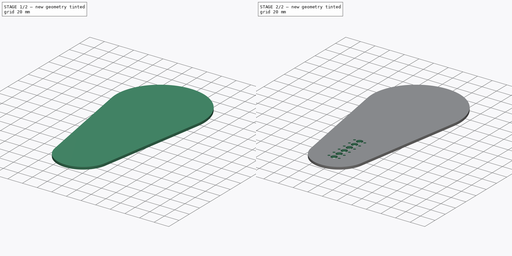
[diagram: build sequence overview — one tinted view per stage of 2, left to right]
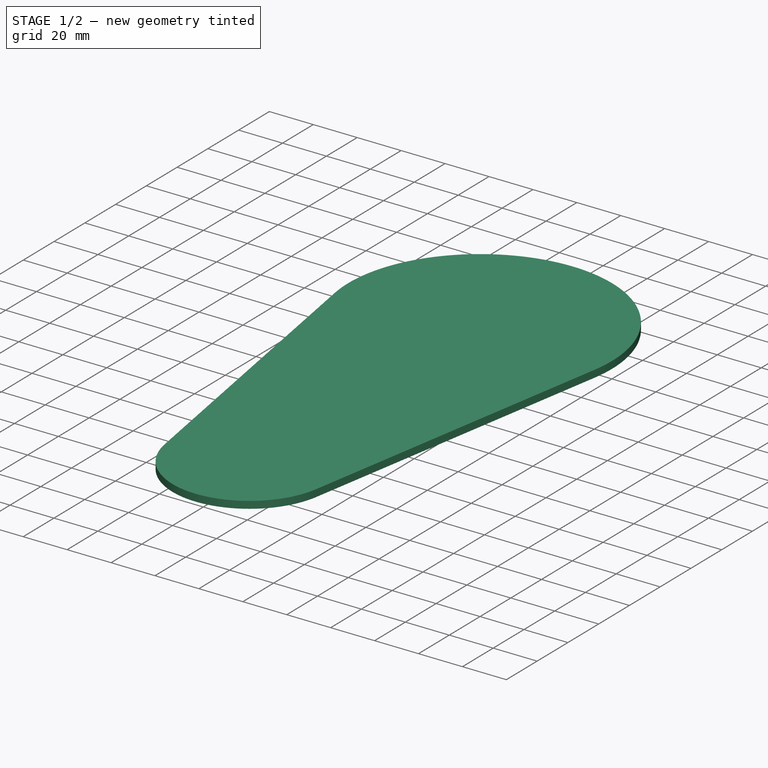
[diagram: stage 1 of 2 — iso view after this stage's code; geometry added in this stage tinted green]
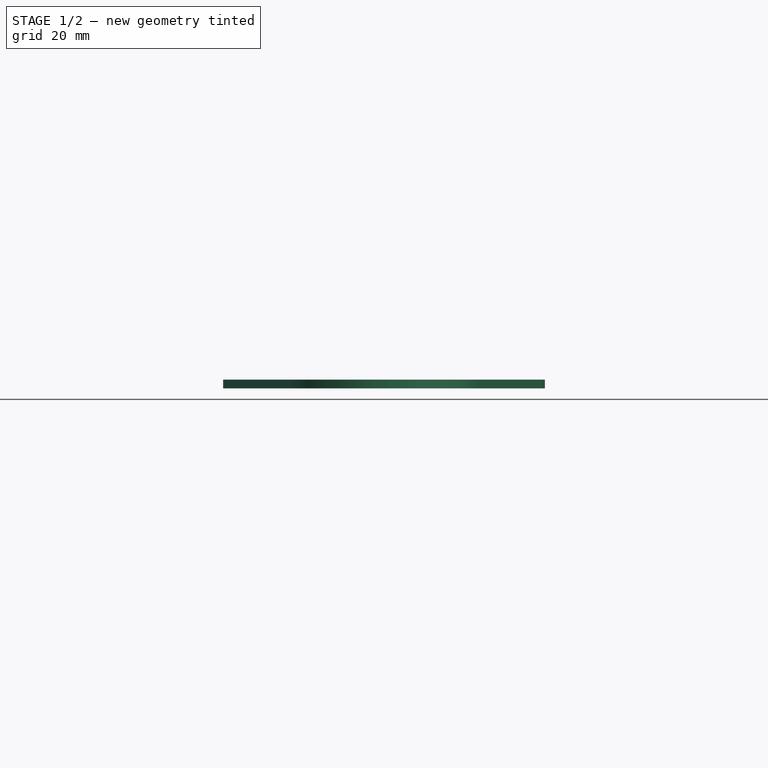
[diagram: stage 1 of 2 — front view after this stage's code; geometry added in this stage tinted green]
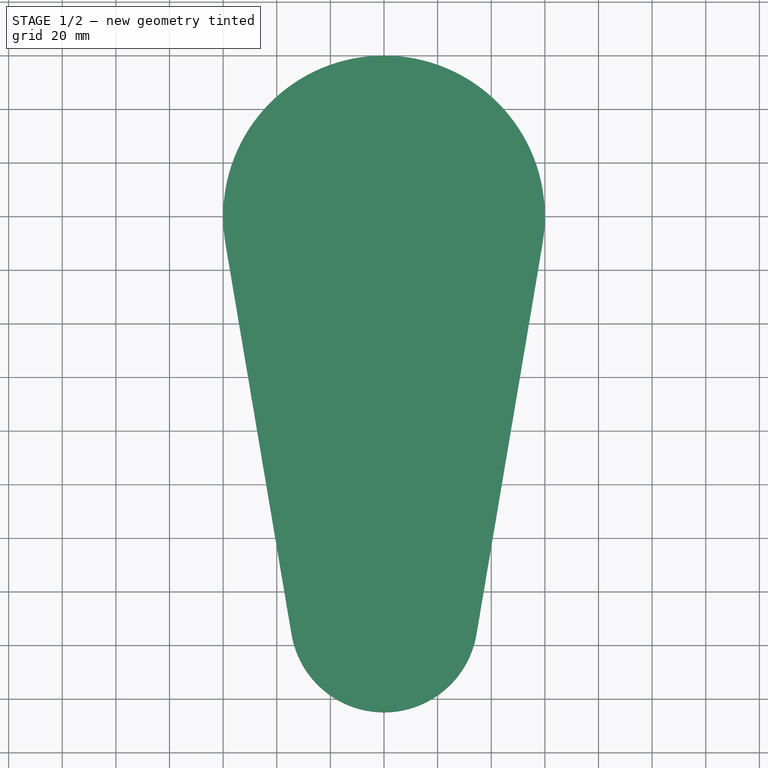
[diagram: stage 1 of 2 — top view after this stage's code; geometry added in this stage tinted green]
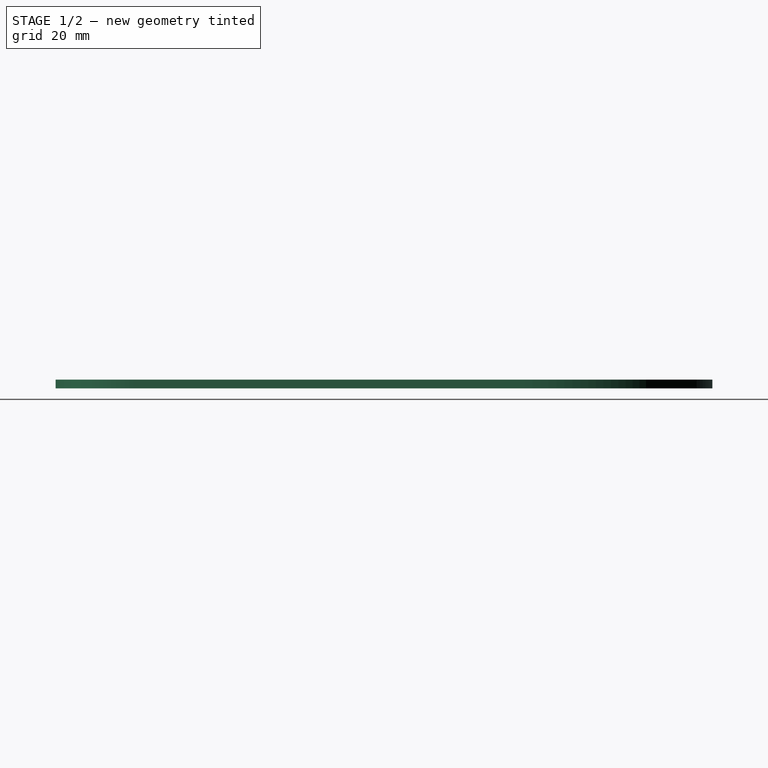
[diagram: stage 1 of 2 — right view after this stage's code; geometry added in this stage tinted green]
FCSTD DOCUMENT  (FreeCAD 0.17R13541 (Git))
Label: PaleShutter24Cm
License: All rights reserved
LicenseURL: http://en.wikipedia.org/wiki/All_rights_reserved
objects: Sketcher::SketchObject×2, PartDesign::Pad×1, PartDesign::Pocket×1, PartDesign::Body×1
note: 7 computed .brp shape members not serialized (recipe doc carries the construction recipe); baked Part::Feature solids carry a one-line shape summary decoded from their .brp

FEATURE [Sketcher::SketchObject] Sketch
  MapMode = 5
  Support = -> [XY_Plane]
  sketch-geometry (4):
    g0: ArcOfCircle CenterX=0 CenterY=0 CenterZ=0 NormalX=0 NormalY=0 NormalZ=1 AngleXU=0 Radius=60 StartAngle=6.11574 EndAngle=9.59223
    g1: ArcOfCircle CenterX=0 CenterY=-150 CenterZ=0 NormalX=0 NormalY=0 NormalZ=1 AngleXU=0 Radius=35 StartAngle=3.30904 EndAngle=6.11574
    g2: LineSegment StartX=-59.1608 StartY=-10 StartZ=0 EndX=-34.5105 EndY=-155.833 EndZ=0
    g3: LineSegment StartX=59.1608 StartY=-10 StartZ=0 EndX=34.5105 EndY=-155.833 EndZ=0
  constraints (9):
    c: Radius(g0) = 60
    c: Coincident(g-1,g0)
    c: Radius(g1) = 35
    c: DistanceX(g1,g-1) = 0
    c: DistanceY(g1,g-1) = 150
    c: Coincident(g3,g1)
    c: Coincident(g2,g1)
    c: Coincident(g3,g0)
    c: Coincident(g2,g0)
FEATURE [PartDesign::Pad] Pad
  Length = 3.25
  Length2 = 100
  Profile = -> Sketch
  Type = 0
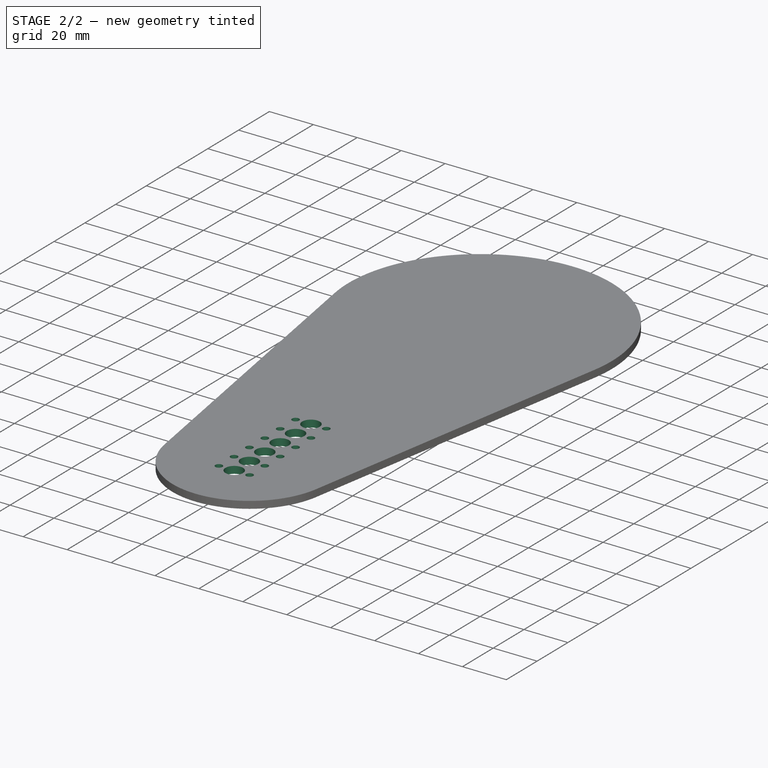
[diagram: stage 2 of 2 — iso view after this stage's code; geometry added in this stage tinted green]
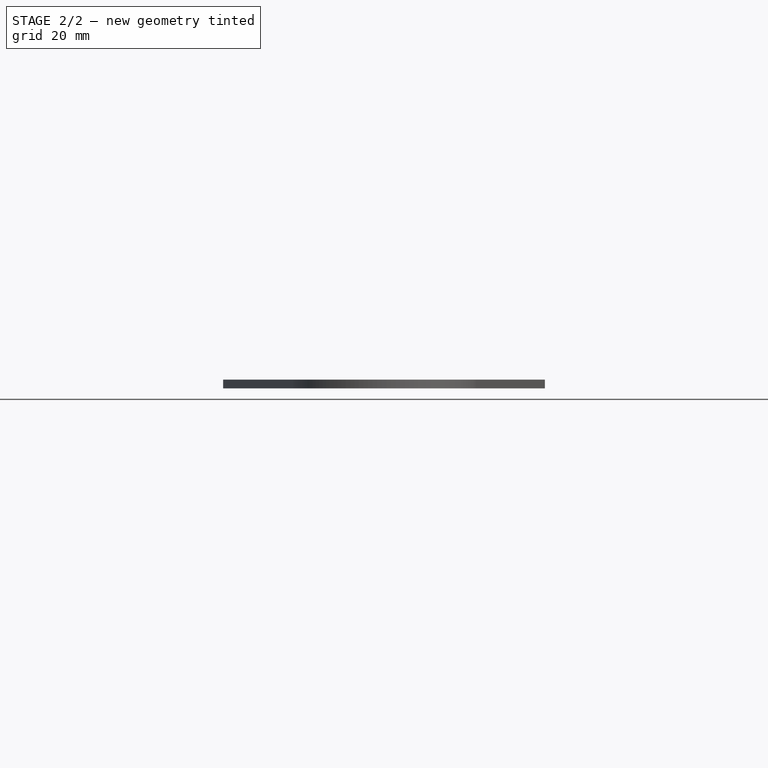
[diagram: stage 2 of 2 — front view after this stage's code; geometry added in this stage tinted green]
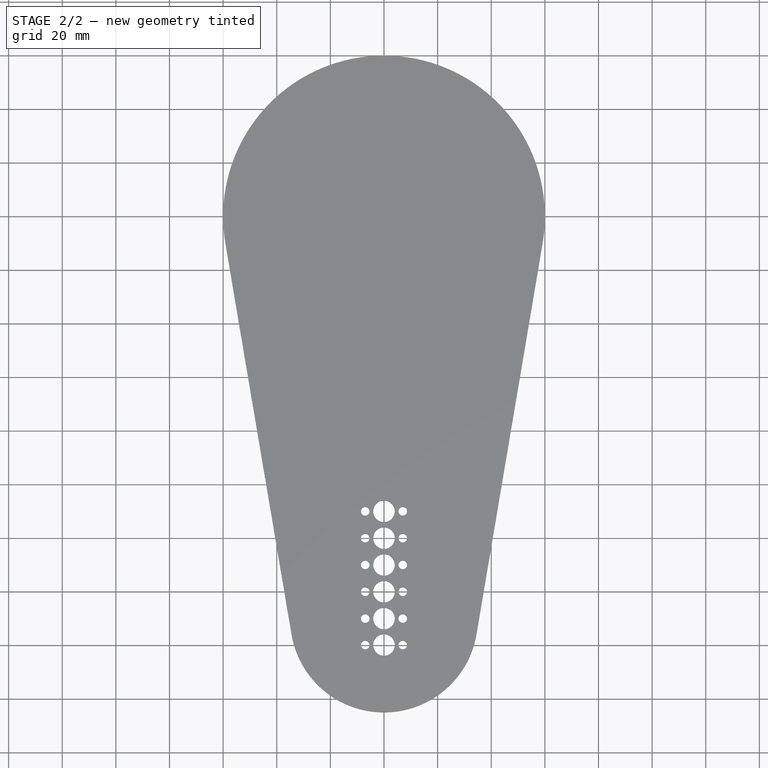
[diagram: stage 2 of 2 — top view after this stage's code; geometry added in this stage tinted green]
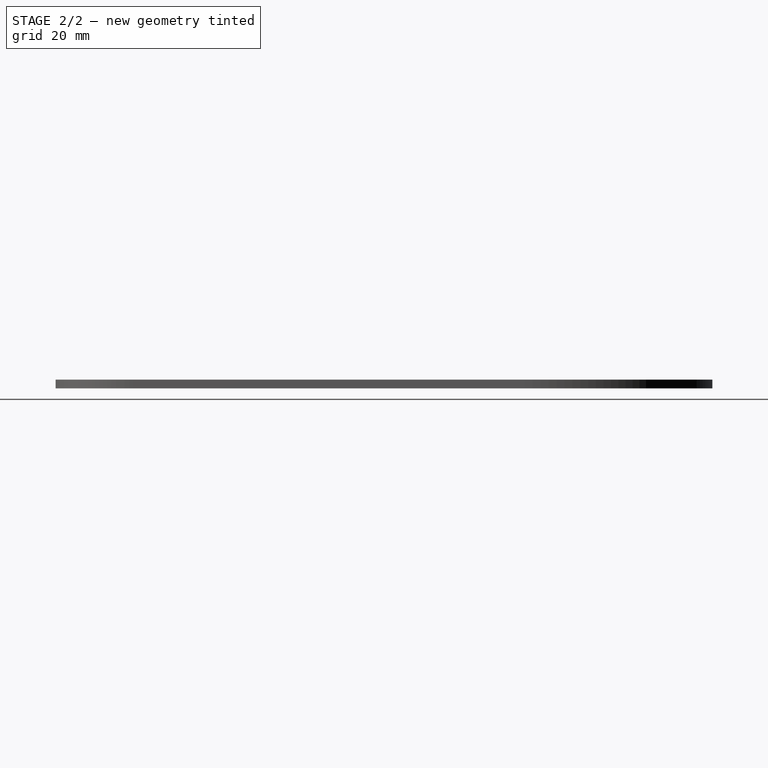
[diagram: stage 2 of 2 — right view after this stage's code; geometry added in this stage tinted green]
FEATURE [Sketcher::SketchObject] Sketch001
  ExternalGeometry = -> [Pad]
  MapMode = 5
  Placement = pos=(0,0,3.25) rot=(0,0,1;0rad)
  Support = -> [Pad]
  sketch-geometry (18):
    g0: Circle CenterX=0 CenterY=-150 CenterZ=0 NormalX=0 NormalY=0 NormalZ=1 AngleXU=0 Radius=4
    g1: Circle CenterX=-7 CenterY=-150 CenterZ=0 NormalX=0 NormalY=0 NormalZ=1 AngleXU=0 Radius=1.6
    g2: Circle CenterX=7 CenterY=-150 CenterZ=0 NormalX=0 NormalY=0 NormalZ=1 AngleXU=0 Radius=1.6
    g3: Circle CenterX=0 CenterY=-130 CenterZ=0 NormalX=0 NormalY=0 NormalZ=1 AngleXU=0 Radius=4
    g4: Circle CenterX=7 CenterY=-130 CenterZ=0 NormalX=0 NormalY=0 NormalZ=1 AngleXU=0 Radius=1.6
    g5: Circle CenterX=-7 CenterY=-130 CenterZ=0 NormalX=0 NormalY=0 NormalZ=1 AngleXU=0 Radius=1.6
    g6: Circle CenterX=0 CenterY=-140 CenterZ=0 NormalX=0 NormalY=0 NormalZ=1 AngleXU=0 Radius=4
    g7: Circle CenterX=7 CenterY=-140 CenterZ=0 NormalX=0 NormalY=0 NormalZ=1 AngleXU=0 Radius=1.6
    g8: Circle CenterX=-7 CenterY=-140 CenterZ=0 NormalX=0 NormalY=0 NormalZ=1 AngleXU=0 Radius=1.6
    g9: Circle CenterX=0 CenterY=-159.875 CenterZ=0 NormalX=0 NormalY=0 NormalZ=1 AngleXU=0 Radius=4
    g10: Circle CenterX=7 CenterY=-159.875 CenterZ=0 NormalX=0 NormalY=0 NormalZ=1 AngleXU=0 Radius=1.6
    g11: Circle CenterX=-7 CenterY=-159.875 CenterZ=0 NormalX=0 NormalY=0 NormalZ=1 AngleXU=0 Radius=1.6
    g12: Circle CenterX=0 CenterY=-120 CenterZ=0 NormalX=0 NormalY=0 NormalZ=1 AngleXU=0 Radius=4
    g13: Circle CenterX=7 CenterY=-120 CenterZ=0 NormalX=0 NormalY=0 NormalZ=1 AngleXU=0 Radius=1.6
    g14: Circle CenterX=-7 CenterY=-120 CenterZ=0 NormalX=0 NormalY=0 NormalZ=1 AngleXU=0 Radius=1.6
    g15: Circle CenterX=0 CenterY=-110 CenterZ=0 NormalX=0 NormalY=0 NormalZ=1 AngleXU=0 Radius=4
    g16: Circle CenterX=7 CenterY=-110 CenterZ=0 NormalX=0 NormalY=0 NormalZ=1 AngleXU=0 Radius=1.6
    g17: Circle CenterX=-7 CenterY=-110 CenterZ=0 NormalX=0 NormalY=0 NormalZ=1 AngleXU=0 Radius=1.6
  constraints (52):
    c: Coincident(g0,g-3)
    c: Radius(g0) = 4
    c: Radius(g2) = 1.6
    c: Equal(g2,g1)
    c: DistanceY(g0,g1) = 0
    c: DistanceY(g2,g0) = 0
    c: DistanceX(g1,g0) = 7
    c: DistanceX(g0,g2) = 7
    c: Radius(g3) = 4
    c: DistanceY(g0,g3) = 20
    c: DistanceX(g0,g3) = 0
    c: Radius(g5) = 1.6
    c: Equal(g5,g4)
    c: DistanceY(g5,g3) = 0
    c: DistanceY(g4,g3) = 0
    c: DistanceX(g5,g3) = 7
    c: DistanceX(g5,g4) = 14
    c: DistanceY(g0,g6) = 10
    c: DistanceX(g0,g6) = 0
    c: DistanceY(g6,g8) = 0
    c: Radius(g8) = 1.6
    c: Equal(g8,g7)
    c: DistanceX(g8,g6) = 7
    c: DistanceX(g6,g7) = 7
    c: DistanceY(g6,g7) = 0
    c: Radius(g9) = 4
    c: Radius(g11) = 1.6
    c: Equal(g11,g10)
    c: DistanceY(g9,g11) = 0
    c: DistanceY(g10,g9) = 0
    c: DistanceX(g9,g0) = 0
    c: DistanceX(g11,g9) = 7
    c: DistanceX(g9,g10) = 7
    c: Radius(g6) = 4
    c: Radius(g12) = 4
    c: Radius(g14) = 1.6
    c: Equal(g14,g13)
    c: DistanceX(g14,g12) = 7
    c: DistanceX(g12,g13) = 7
    c: DistanceY(g12,g13) = 0
    c: DistanceY(g12,g14) = 0
    c: DistanceX(g12,g3) = 0
    c: DistanceY(g3,g12) = 10
    c: Radius(g15) = 4
    c: Radius(g17) = 1.6
    c: Equal(g17,g16)
    c: DistanceY(g17,g15) = 0
    c: DistanceY(g16,g15) = 0
    c: DistanceX(g15,g12) = 0
    c: DistanceY(g12,g15) = 10
    c: DistanceX(g17,g15) = 7
    c: DistanceX(g15,g16) = 7
FEATURE [PartDesign::Pocket] Pocket
  BaseFeature = -> Pad
  Length = 3.5
  Length2 = 100
  Profile = -> Sketch001
  Type = 0
FEATURE [PartDesign::Body] Body
  Group = -> [Sketch,Pad,Sketch001,Pocket]
  Origin = -> Origin
  Tip = -> Pocket
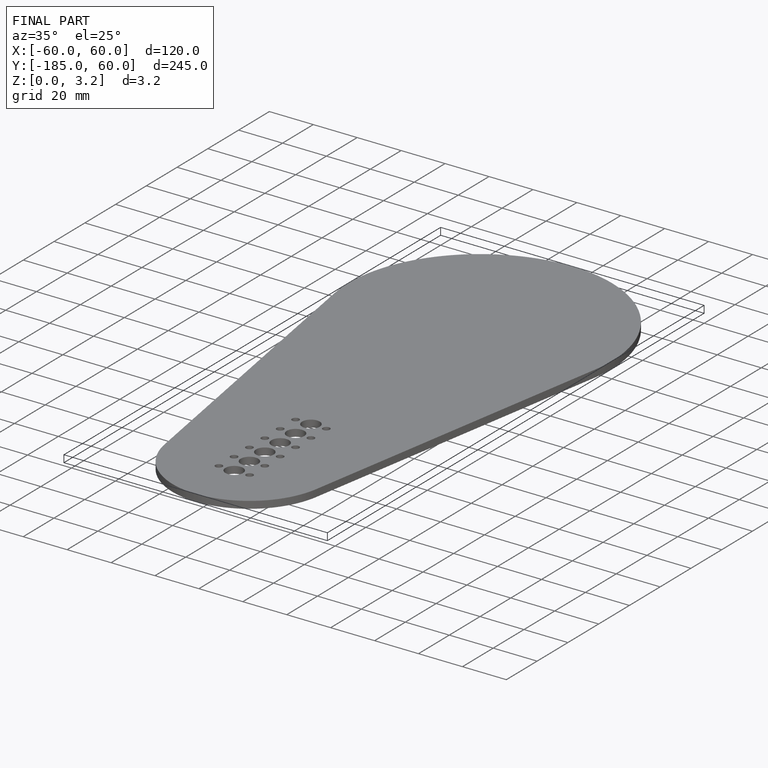
[diagram: finished part — iso view with bounding-box wireframe]
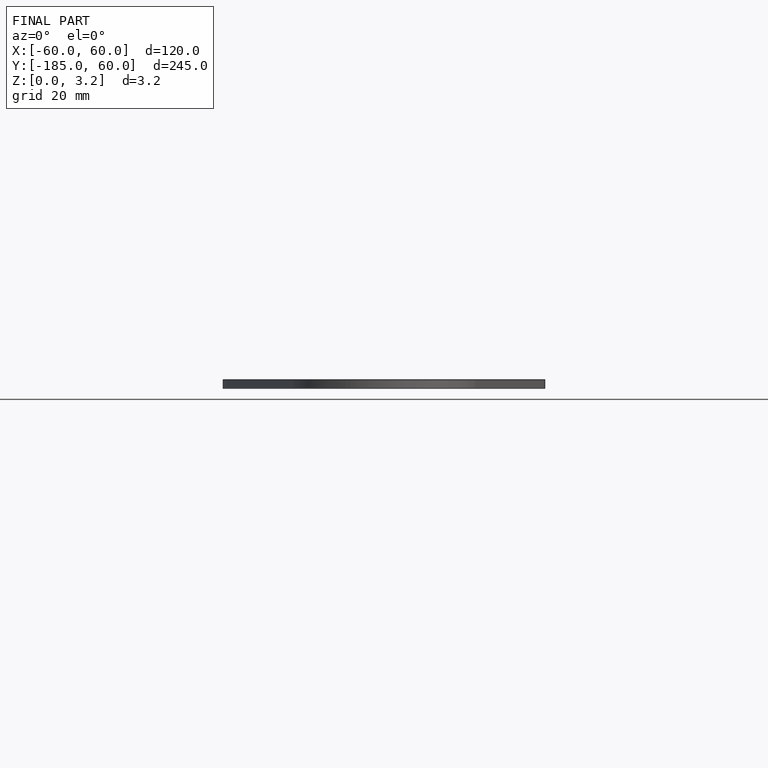
[diagram: finished part — front view with bounding-box wireframe]
